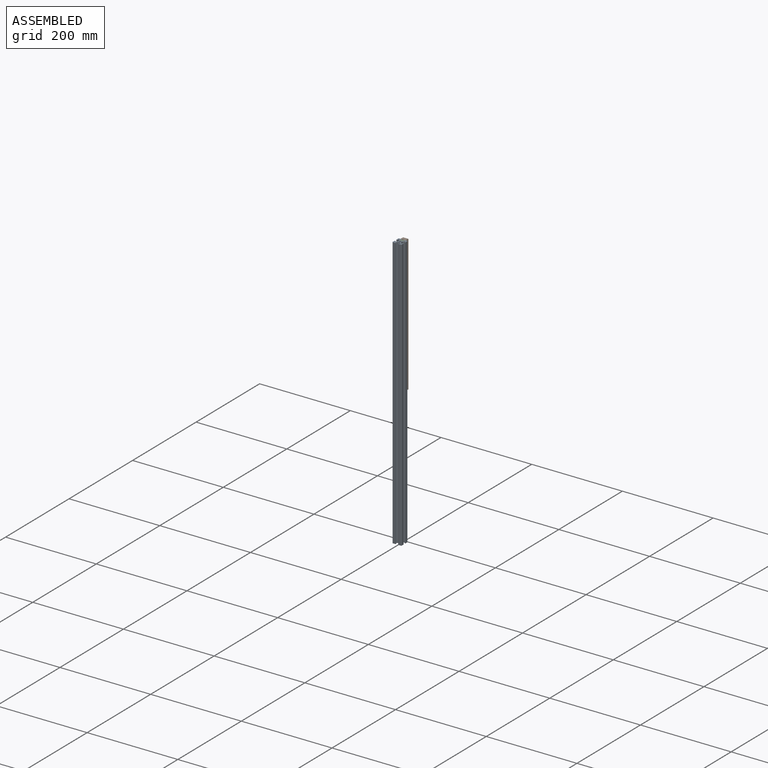
[diagram: assembled view]
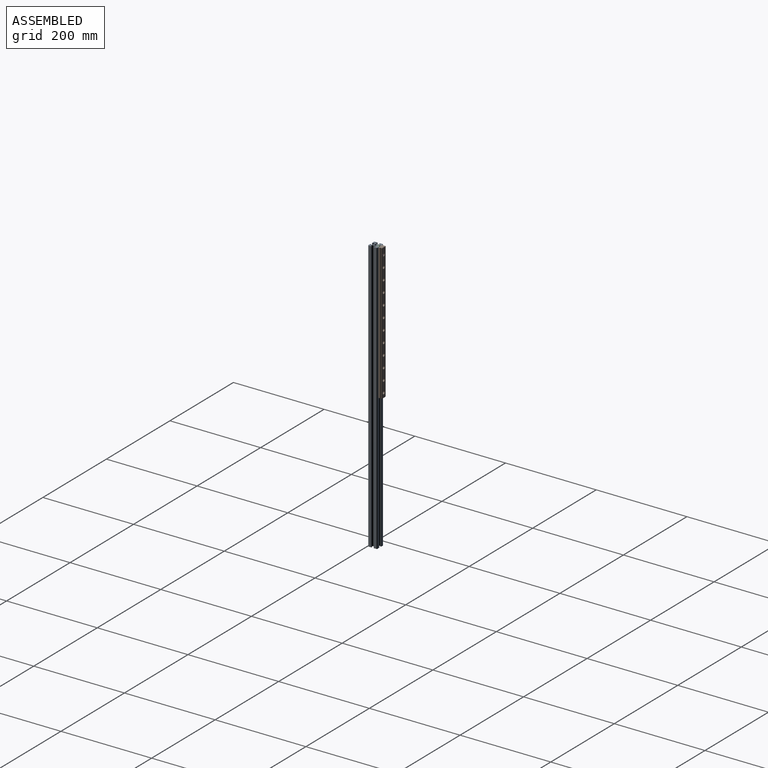
[diagram: assembled view, second angle]
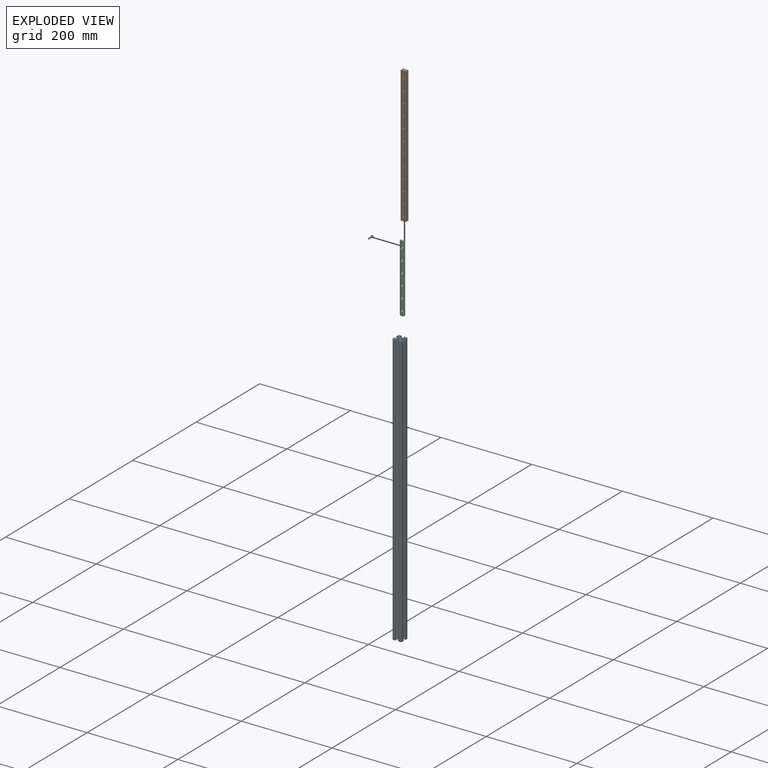
[diagram: exploded view]
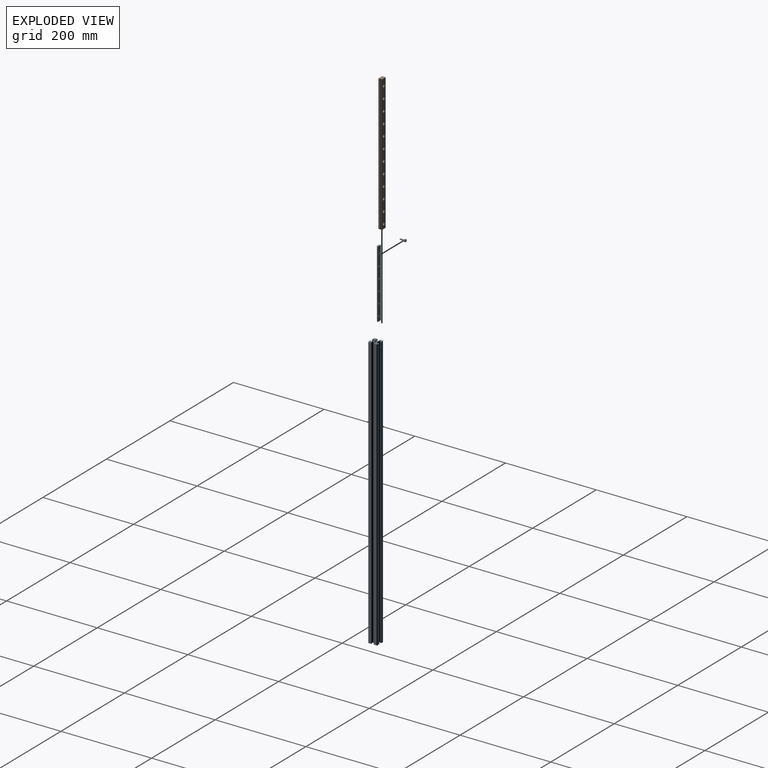
[diagram: exploded view, second angle]
ASSEMBLY  parts=4 mates=3
PART A: 59 faces, bbox 20x20x600 mm
  f0: cylinder r=2.5mm len=600mm, axis (0,0,1), area 9424.8mm2, adj f41,f42
  f1: plane 600x1.09mm, normal (0,1,0), area 651.5mm2, adj f10,f11,f41,f42
  f2: plane 600x1.09mm, normal (0,-1,0), area 651.5mm2, adj f13,f14,f41,f42
  f3: plane 600x1.09mm, normal (1,0,0), area 651.5mm2, adj f18,f19,f41,f42
  f4: plane 600x1.09mm, normal (-1,0,0), area 651.5mm2, adj f21,f22,f41,f42
  f5: plane 600x1.09mm, normal (0,-1,0), area 651.5mm2, adj f26,f27,f41,f42
  f6: plane 600x1.09mm, normal (0,1,0), area 651.5mm2, adj f29,f30,f41,f42
  f7: plane 600x1.09mm, normal (-1,0,0), area 651.5mm2, adj f34,f35,f41,f42
  f8: plane 600x1.09mm, normal (1,0,0), area 651.5mm2, adj f37,f38,f41,f42
  f9: plane 600x5.6mm, normal (-1,0,0), area 3360mm2, adj f40,f41,f42,f55
  f10: plane 600x2.9mm, normal (1,0,0), area 1740mm2, adj f1,f41,f42,f50
  f11: plane 600x3.01mm, normal (-0.71,0.71,0), area 2557.6mm2, adj f1,f12,f41,f42
  f12: plane 600x4.97mm, normal (-1,0,0), area 2982.9mm2, adj f11,f13,f41,f42
  f13: plane 600x3.01mm, normal (-0.71,-0.71,0), area 2557.6mm2, adj f2,f12,f41,f42
  f14: plane 600x2.9mm, normal (1,0,0), area 1740mm2, adj f2,f41,f42,f49
  f15: plane 600x5.6mm, normal (-1,0,0), area 3360mm2, adj f16,f41,f42,f56
  f16: cylinder r=1.5mm len=600mm, axis (0,0,-1), area 1413.7mm2, adj f15,f17,f41,f42
  f17: plane 600x5.6mm, normal (0,1,0), area 3360mm2, adj f16,f41,f42,f57
  f18: plane 600x2.9mm, normal (0,-1,0), area 1740mm2, adj f3,f41,f42,f44
  f19: plane 600x3.01mm, normal (0.71,0.71,0), area 2557.6mm2, adj f3,f20,f41,f42
  f20: plane 600x4.97mm, normal (0,1,0), area 2982.9mm2, adj f19,f21,f41,f42
  f21: plane 600x3.01mm, normal (-0.71,0.71,0), area 2557.6mm2, adj f4,f20,f41,f42
  f22: plane 600x2.9mm, normal (0,-1,0), area 1740mm2, adj f4,f41,f42,f43
  f23: plane 600x5.6mm, normal (0,1,0), area 3360mm2, adj f24,f41,f42,f58
  f24: cylinder r=1.5mm len=600mm, axis (0,0,-1), area 1413.7mm2, adj f23,f25,f41,f42
  f25: plane 600x5.6mm, normal (1,0,0), area 3360mm2, adj f24,f41,f42,f51
  f26: plane 600x2.9mm, normal (-1,0,0), area 1740mm2, adj f5,f41,f42,f46
  f27: plane 600x3.01mm, normal (0.71,-0.71,0), area 2557.6mm2, adj f5,f28,f41,f42
  f28: plane 600x4.97mm, normal (1,0,0), area 2982.9mm2, adj f27,f29,f41,f42
  f29: plane 600x3.01mm, normal (0.71,0.71,0), area 2557.6mm2, adj f6,f28,f41,f42
  f30: plane 600x2.9mm, normal (-1,0,0), area 1740mm2, adj f6,f41,f42,f45
  f31: plane 600x5.6mm, normal (1,0,0), area 3360mm2, adj f32,f41,f42,f53
  f32: cylinder r=1.5mm len=600mm, axis (0,0,-1), area 1413.7mm2, adj f31,f33,f41,f42
  f33: plane 600x5.6mm, normal (0,-1,0), area 3360mm2, adj f32,f41,f42,f54
  f34: plane 600x2.9mm, normal (0,1,0), area 1740mm2, adj f7,f41,f42,f48
  f35: plane 600x3.01mm, normal (-0.71,-0.71,0), area 2557.6mm2, adj f7,f36,f41,f42
  f36: plane 600x4.97mm, normal (0,-1,0), area 2982.9mm2, adj f35,f37,f41,f42
  f37: plane 600x3.01mm, normal (0.71,-0.71,0), area 2557.6mm2, adj f8,f36,f41,f42
  f38: plane 600x2.9mm, normal (0,1,0), area 1740mm2, adj f8,f41,f42,f47
  f39: plane 600x5.6mm, normal (0,-1,0), area 3360mm2, adj f40,f41,f42,f52
  f40: cylinder r=1.5mm len=600mm, axis (0,0,-1), area 1413.7mm2, adj f9,f39,f41,f42
  f41: plane 20x20mm, normal (0,0,1), area 192.4mm2, adj f0,f1,f2,f3,f4,f5,f6,f7
  f42: plane 20x20mm, normal (0,0,-1), area 192.4mm2, adj f0,f1,f2,f3,f4,f5,f6,f7
  f43: plane 600x1.7mm, normal (-1,0,0), area 1020mm2, adj f22,f41,f42,f58
  f44: plane 600x1.7mm, normal (1,0,0), area 1020mm2, adj f18,f41,f42,f57
  f45: plane 600x1.7mm, normal (0,1,0), area 1020mm2, adj f30,f41,f42,f53
  f46: plane 600x1.7mm, normal (0,-1,0), area 1020mm2, adj f26,f41,f42,f51
  f47: plane 600x1.7mm, normal (1,0,0), area 1020mm2, adj f38,f41,f42,f52
  f48: plane 600x1.7mm, normal (-1,0,0), area 1020mm2, adj f34,f41,f42,f54
  f49: plane 600x1.7mm, normal (0,-1,0), area 1020mm2, adj f14,f41,f42,f56
  f50: plane 600x1.7mm, normal (0,1,0), area 1020mm2, adj f10,f41,f42,f55
  f51: plane 600x0.3mm, normal (0.71,-0.71,0), area 254.6mm2, adj f25,f41,f42,f46
  f52: plane 600x0.3mm, normal (0.71,-0.71,0), area 254.6mm2, adj f39,f41,f42,f47
  f53: plane 600x0.3mm, normal (0.71,0.71,0), area 254.6mm2, adj f31,f41,f42,f45
  f54: plane 600x0.3mm, normal (-0.71,-0.71,0), area 254.6mm2, adj f33,f41,f42,f48
  f55: plane 600x0.3mm, normal (-0.71,0.71,0), area 254.6mm2, adj f9,f41,f42,f50
  f56: plane 600x0.3mm, normal (-0.71,-0.71,0), area 254.6mm2, adj f15,f41,f42,f49
  f57: plane 600x0.3mm, normal (0.71,0.71,0), area 254.6mm2, adj f17,f41,f42,f44
  f58: plane 600x0.3mm, normal (-0.71,0.71,0), area 254.6mm2, adj f23,f41,f42,f43
PART B: 58 faces, bbox 12x8x300 mm
  f0: cylinder r=1.75mm len=3.5mm, axis (0,1,0), area 38.5mm2, adj f32,f57
  f1: cylinder r=1.75mm len=3.5mm, axis (0,1,0), area 38.5mm2, adj f32,f56
  f2: cylinder r=1.75mm len=3.5mm, axis (0,1,0), area 38.5mm2, adj f32,f55
  f3: cylinder r=1.75mm len=3.5mm, axis (0,1,0), area 38.5mm2, adj f32,f54
  f4: cylinder r=1.75mm len=3.5mm, axis (0,1,0), area 38.5mm2, adj f32,f53
  f5: cylinder r=1.75mm len=3.5mm, axis (0,1,0), area 38.5mm2, adj f32,f52
  f6: cylinder r=1.75mm len=3.5mm, axis (0,1,0), area 38.5mm2, adj f32,f51
  f7: cylinder r=1.75mm len=3.5mm, axis (0,1,0), area 38.5mm2, adj f32,f50
  f8: cylinder r=1.75mm len=3.5mm, axis (0,1,0), area 38.5mm2, adj f32,f49
  f9: cylinder r=1.75mm len=3.5mm, axis (0,1,0), area 38.5mm2, adj f32,f48
  f10: cylinder r=1.75mm len=3.5mm, axis (0,1,0), area 38.5mm2, adj f32,f47
  f11: cylinder r=3mm len=6mm, axis (0,1,0), area 84.8mm2, adj f42,f57
  f12: cylinder r=3mm len=6mm, axis (0,1,0), area 84.8mm2, adj f42,f56
  f13: cylinder r=3mm len=6mm, axis (0,1,0), area 84.8mm2, adj f42,f55
  f14: cylinder r=3mm len=6mm, axis (0,1,0), area 84.8mm2, adj f42,f54
  f15: cylinder r=3mm len=6mm, axis (0,1,0), area 84.8mm2, adj f42,f53
  f16: cylinder r=3mm len=6mm, axis (0,1,0), area 84.8mm2, adj f42,f52
  f17: cylinder r=3mm len=6mm, axis (0,1,0), area 84.8mm2, adj f42,f51
  f18: cylinder r=3mm len=6mm, axis (0,1,0), area 84.8mm2, adj f42,f50
  f19: cylinder r=3mm len=6mm, axis (0,1,0), area 84.8mm2, adj f42,f49
  f20: cylinder r=3mm len=6mm, axis (0,1,0), area 84.8mm2, adj f42,f48
  f21: cylinder r=3mm len=6mm, axis (0,1,0), area 84.8mm2, adj f42,f47
  f22: cylinder r=1.75mm len=3.5mm, axis (0,1,0), area 38.5mm2, adj f32,f46
  f23: cylinder r=3mm len=6mm, axis (0,1,0), area 84.8mm2, adj f42,f46
  f24: plane 300x1.25mm, normal (-1,0,0), area 375.1mm2, adj f25,f43,f44,f45
  f25: cylinder r=1.12mm len=300mm, axis (0,0,-1), area 315.2mm2, adj f24,f26,f44,f45
  f26: plane 300x0.61mm, normal (0,-1,0), area 183.1mm2, adj f25,f27,f44,f45
  f27: plane 300x0.64mm, normal (-1,0,0), area 191.4mm2, adj f26,f28,f44,f45
  f28: plane 300x0.6mm, normal (0,1,0), area 181.4mm2, adj f27,f29,f44,f45
  f29: cylinder r=1.12mm len=300mm, axis (0,0,-1), area 321.2mm2, adj f28,f30,f44,f45
  f30: plane 300x4.03mm, normal (-1,0,0), area 1210mm2, adj f29,f31,f44,f45
  f31: plane 300x0.3mm, normal (-0.71,-0.71,0), area 127.3mm2, adj f30,f32,f44,f45
  f32: plane 300x11.4mm, normal (0,-1,0), area 3304.5mm2, adj f0,f1,f2,f3,f4,f5,f6,f7
  f33: plane 300x0.3mm, normal (0.71,-0.71,0), area 127.3mm2, adj f32,f34,f44,f45
  f34: plane 300x4.03mm, normal (1,0,0), area 1210mm2, adj f33,f35,f44,f45
  f35: cylinder r=1.12mm len=300mm, axis (0,0,-1), area 321.2mm2, adj f34,f36,f44,f45
  f36: plane 300x0.6mm, normal (0,1,0), area 181.4mm2, adj f35,f37,f44,f45
  f37: plane 300x0.64mm, normal (1,0,0), area 191.4mm2, adj f36,f38,f44,f45
  f38: plane 300x0.61mm, normal (0,-1,0), area 183.1mm2, adj f37,f39,f44,f45
  f39: cylinder r=1.12mm len=300mm, axis (0,0,-1), area 315.2mm2, adj f38,f40,f44,f45
  f40: plane 300x1.25mm, normal (1,0,0), area 375.1mm2, adj f39,f41,f44,f45
  f41: plane 300x0.3mm, normal (0.71,0.71,0), area 127.3mm2, adj f40,f42,f44,f45
  f42: plane 300x11.4mm, normal (0,1,0), area 3080.7mm2, adj f11,f12,f13,f14,f15,f16,f17,f18
  f43: plane 300x0.3mm, normal (-0.71,0.71,0), area 127.3mm2, adj f24,f42,f44,f45
  f44: plane 12x8mm, normal (0,0,1), area 92.8mm2, adj f24,f25,f26,f27,f28,f29,f30,f31
  f45: plane 12x8mm, normal (0,0,-1), area 92.8mm2, adj f24,f25,f26,f27,f28,f29,f30,f31
  f46: plane 6x6mm, normal (0,1,0), area 18.7mm2, adj f22,f23
  f47: plane 6x6mm, normal (0,1,0), area 18.7mm2, adj f10,f21
  f48: plane 6x6mm, normal (0,1,0), area 18.7mm2, adj f9,f20
  f49: plane 6x6mm, normal (0,1,0), area 18.7mm2, adj f8,f19
  f50: plane 6x6mm, normal (0,1,0), area 18.7mm2, adj f7,f18
  f51: plane 6x6mm, normal (0,1,0), area 18.7mm2, adj f6,f17
  f52: plane 6x6mm, normal (0,1,0), area 18.7mm2, adj f5,f16
  f53: plane 6x6mm, normal (0,1,0), area 18.7mm2, adj f4,f15
  f54: plane 6x6mm, normal (0,1,0), area 18.7mm2, adj f3,f14
  f55: plane 6x6mm, normal (0,1,0), area 18.7mm2, adj f2,f13
  f56: plane 6x6mm, normal (0,1,0), area 18.7mm2, adj f1,f12
  f57: plane 6x6mm, normal (0,1,0), area 18.7mm2, adj f0,f11
PART C: 62 faces, bbox 10.2x3.7x150 mm
  f0: plane 8.33x4.64mm, normal (0,-1,0), area 35.1mm2, adj f7,f8,f18,f55,f56
  f1: plane 21.66x4.64mm, normal (0,-1,0), area 93.3mm2, adj f7,f8,f48,f49,f58,f59
  f2: plane 21.66x4.64mm, normal (0,-1,0), area 93.3mm2, adj f7,f8,f41,f42,f51,f52
  f3: plane 21.66x4.64mm, normal (0,-1,0), area 93.3mm2, adj f7,f8,f34,f35,f44,f45
  f4: plane 21.66x4.64mm, normal (0,-1,0), area 93.3mm2, adj f7,f8,f27,f28,f37,f38
  f5: plane 21.66x4.64mm, normal (0,-1,0), area 93.3mm2, adj f7,f8,f20,f21,f30,f31
  f6: plane 13.33x4.64mm, normal (0,-1,0), area 58.3mm2, adj f7,f8,f19,f23,f24
  f7: plane 150x2.78mm, normal (0.71,-0.71,0), area 573.1mm2, adj f0,f1,f2,f3,f4,f5,f6,f15
  f8: plane 150x2.78mm, normal (-0.71,-0.71,0), area 584.5mm2, adj f0,f1,f2,f3,f4,f5,f6,f17
  f9: cylinder r=1.6mm len=3.2mm, axis (0,1,0), area 12.1mm2, adj f16,f61
  f10: cylinder r=1.6mm len=3.2mm, axis (0,1,0), area 12.1mm2, adj f16,f54
  f11: cylinder r=1.6mm len=3.2mm, axis (0,1,0), area 12.1mm2, adj f16,f47
  f12: cylinder r=1.6mm len=3.2mm, axis (0,1,0), area 12.1mm2, adj f16,f40
  f13: cylinder r=1.6mm len=3.2mm, axis (0,1,0), area 12.1mm2, adj f16,f33
  f14: cylinder r=1.6mm len=3.2mm, axis (0,1,0), area 12.1mm2, adj f16,f26
  f15: plane 150x0.92mm, normal (1,0,0), area 138mm2, adj f7,f16,f18,f19
  f16: plane 150x10.2mm, normal (0,1,0), area 1481.7mm2, adj f9,f10,f11,f12,f13,f14,f15,f17
  f17: plane 150x0.92mm, normal (-1,0,0), area 138mm2, adj f8,f16,f18,f19
  f18: plane 10.2x3.7mm, normal (0,0,-1), area 30mm2, adj f0,f7,f8,f15,f16,f17
  f19: plane 10.2x3.7mm, normal (0,0,1), area 30mm2, adj f6,f7,f8,f15,f16,f17
  f20: plane 2.7x2.5mm, normal (0.5,0,0.87), area 7.8mm2, adj f5,f8,f21,f25,f26
  f21: plane 2.7x2.5mm, normal (-0.5,0,0.87), area 7.6mm2, adj f5,f7,f20,f22,f26
  f22: plane 3.12x1.93mm, normal (-1,0,0), area 6mm2, adj f7,f21,f23,f26
  f23: plane 2.7x2.5mm, normal (-0.5,0,-0.87), area 7.6mm2, adj f6,f7,f22,f24,f26
  f24: plane 2.7x2.5mm, normal (0.5,0,-0.87), area 7.8mm2, adj f6,f8,f23,f25,f26
  f25: plane 3.12x2.31mm, normal (1,0,0), area 7.2mm2, adj f8,f20,f24,f26
  f26: plane 6.24x5.4mm, normal (0,-1,0), area 17.2mm2, adj f14,f20,f21,f22,f23,f24,f25
  f27: plane 2.7x2.5mm, normal (0.5,0,0.87), area 7.8mm2, adj f4,f8,f28,f32,f33
  f28: plane 2.7x2.5mm, normal (-0.5,0,0.87), area 7.6mm2, adj f4,f7,f27,f29,f33
  f29: plane 3.12x1.93mm, normal (-1,0,0), area 6mm2, adj f7,f28,f30,f33
  f30: plane 2.7x2.5mm, normal (-0.5,0,-0.87), area 7.6mm2, adj f5,f7,f29,f31,f33
  f31: plane 2.7x2.5mm, normal (0.5,0,-0.87), area 7.8mm2, adj f5,f8,f30,f32,f33
  f32: plane 3.12x2.31mm, normal (1,0,0), area 7.2mm2, adj f8,f27,f31,f33
  f33: plane 6.24x5.4mm, normal (0,-1,0), area 17.2mm2, adj f13,f27,f28,f29,f30,f31,f32
  f34: plane 2.7x2.5mm, normal (0.5,0,0.87), area 7.8mm2, adj f3,f8,f35,f39,f40
  f35: plane 2.7x2.5mm, normal (-0.5,0,0.87), area 7.6mm2, adj f3,f7,f34,f36,f40
  f36: plane 3.12x1.93mm, normal (-1,0,0), area 6mm2, adj f7,f35,f37,f40
  f37: plane 2.7x2.5mm, normal (-0.5,0,-0.87), area 7.6mm2, adj f4,f7,f36,f38,f40
  f38: plane 2.7x2.5mm, normal (0.5,0,-0.87), area 7.8mm2, adj f4,f8,f37,f39,f40
  f39: plane 3.12x2.31mm, normal (1,0,0), area 7.2mm2, adj f8,f34,f38,f40
  f40: plane 6.24x5.4mm, normal (0,-1,0), area 17.2mm2, adj f12,f34,f35,f36,f37,f38,f39
  f41: plane 2.7x2.5mm, normal (0.5,0,0.87), area 7.8mm2, adj f2,f8,f42,f46,f47
  f42: plane 2.7x2.5mm, normal (-0.5,0,0.87), area 7.6mm2, adj f2,f7,f41,f43,f47
  f43: plane 3.12x1.93mm, normal (-1,0,0), area 6mm2, adj f7,f42,f44,f47
  f44: plane 2.7x2.5mm, normal (-0.5,0,-0.87), area 7.6mm2, adj f3,f7,f43,f45,f47
  f45: plane 2.7x2.5mm, normal (0.5,0,-0.87), area 7.8mm2, adj f3,f8,f44,f46,f47
  f46: plane 3.12x2.31mm, normal (1,0,0), area 7.2mm2, adj f8,f41,f45,f47
  f47: plane 6.24x5.4mm, normal (0,-1,0), area 17.2mm2, adj f11,f41,f42,f43,f44,f45,f46
  f48: plane 2.7x2.5mm, normal (0.5,0,0.87), area 7.8mm2, adj f1,f8,f49,f53,f54
  f49: plane 2.7x2.5mm, normal (-0.5,0,0.87), area 7.6mm2, adj f1,f7,f48,f50,f54
  f50: plane 3.12x1.93mm, normal (-1,0,0), area 6mm2, adj f7,f49,f51,f54
  f51: plane 2.7x2.5mm, normal (-0.5,0,-0.87), area 7.6mm2, adj f2,f7,f50,f52,f54
  f52: plane 2.7x2.5mm, normal (0.5,0,-0.87), area 7.8mm2, adj f2,f8,f51,f53,f54
  f53: plane 3.12x2.31mm, normal (1,0,0), area 7.2mm2, adj f8,f48,f52,f54
  f54: plane 6.24x5.4mm, normal (0,-1,0), area 17.2mm2, adj f10,f48,f49,f50,f51,f52,f53
  f55: plane 2.7x2.5mm, normal (0.5,0,0.87), area 7.8mm2, adj f0,f8,f56,f60,f61
  f56: plane 2.7x2.5mm, normal (-0.5,0,0.87), area 7.6mm2, adj f0,f7,f55,f57,f61
  f57: plane 3.12x1.93mm, normal (-1,0,0), area 6mm2, adj f7,f56,f58,f61
  f58: plane 2.7x2.5mm, normal (-0.5,0,-0.87), area 7.6mm2, adj f1,f7,f57,f59,f61
  f59: plane 2.7x2.5mm, normal (0.5,0,-0.87), area 7.8mm2, adj f1,f8,f58,f60,f61
  f60: plane 3.12x2.31mm, normal (1,0,0), area 7.2mm2, adj f8,f55,f59,f61
  f61: plane 6.24x5.4mm, normal (0,-1,0), area 17.2mm2, adj f9,f55,f56,f57,f58,f59,f60
PART D: 21 faces, bbox 6x6x13 mm
  f0: plane 4.9x4.9mm, normal (0,0,1), area 13.4mm2, adj f5,f6,f7,f8,f9,f10,f19
  f1: plane 2.4x2.4mm, normal (0,0,-1), area 4.5mm2, adj f18
  f2: cylinder r=1.5mm len=9.7mm, axis (0,0,-1), area 91.4mm2, adj f3,f18
  f3: plane 5.3x5.3mm, normal (0,0,-1), area 15mm2, adj f2,f20
  f4: cylinder r=2.75mm len=5.5mm, axis (0,0,-1), area 44.9mm2, adj f19,f20
  f5: plane 1.25x1.1mm, normal (0.87,-0.5,0), area 1.6mm2, adj f0,f6,f10,f17
  f6: plane 1.25x1.1mm, normal (0.87,0.5,0), area 1.6mm2, adj f0,f5,f7,f15
  f7: plane 1.44x1.1mm, normal (0,1,0), area 1.6mm2, adj f0,f6,f8,f13
  f8: plane 1.25x1.1mm, normal (-0.87,0.5,0), area 1.6mm2, adj f0,f7,f9,f12
  f9: plane 1.25x1.1mm, normal (-0.87,-0.5,0), area 1.6mm2, adj f0,f8,f10,f14
  f10: plane 1.44x1.1mm, normal (0,-1,0), area 1.6mm2, adj f0,f5,f9,f16
  f11: plane 0.89x0.77mm, normal (0,0,1), area 0.5mm2, adj f12,f13,f14,f15,f16,f17
  f12: plane 1.25x1.22mm, normal (-0.43,0.25,0.87), area 0.9mm2, adj f8,f11,f13,f14
  f13: plane 1.44x0.87mm, normal (0,0.5,0.87), area 0.9mm2, adj f7,f11,f12,f15
  f14: plane 1.25x1.22mm, normal (-0.43,-0.25,0.87), area 0.9mm2, adj f9,f11,f12,f16
  f15: plane 1.25x1.22mm, normal (0.43,0.25,0.87), area 0.9mm2, adj f6,f11,f13,f17
  f16: plane 1.44x0.87mm, normal (0,-0.5,0.87), area 0.9mm2, adj f10,f11,f14,f17
  f17: plane 1.25x1.22mm, normal (0.43,-0.25,0.87), area 0.9mm2, adj f5,f11,f15,f16
  f18: cone r=1.2mm half-angle=45deg, axis (0,0,1), area 3.6mm2, adj f1,f2
  f19: cone r=2.75mm half-angle=45deg, axis (0,0,-1), area 6.9mm2, adj f0,f4
  f20: torus R=2.65mm, axis (0,0,1), area 2.7mm2, adj f3,f4
PLACE A t=(0.08,14.07,-298.75)mm
PLACE B t=(0.08,28.07,1.25)mm
PLACE C t=(0.08,27.97,1.25)mm
PLACE D rot(axis=(-1,0,0),90deg) t=(0.26,30.57,286.25)mm
MATE planar D.f2 <-> B.f0  axis (0,-1,0) through (0.26,27.57,286.25)mm
MATE fastened A.f41 <-> B.f44  axis (0,0,1) through (0.08,17.97,301.25)mm
MATE fastened C.f19 <-> B.f44  axis (0,0,1) through (0.08,21.97,301.25)mm
